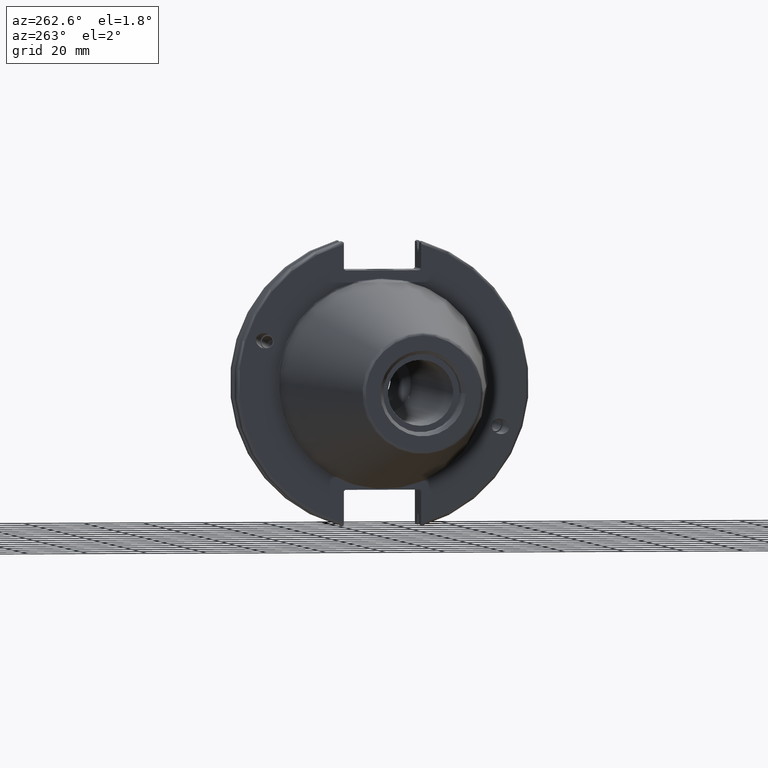
[diagram: clean part render]
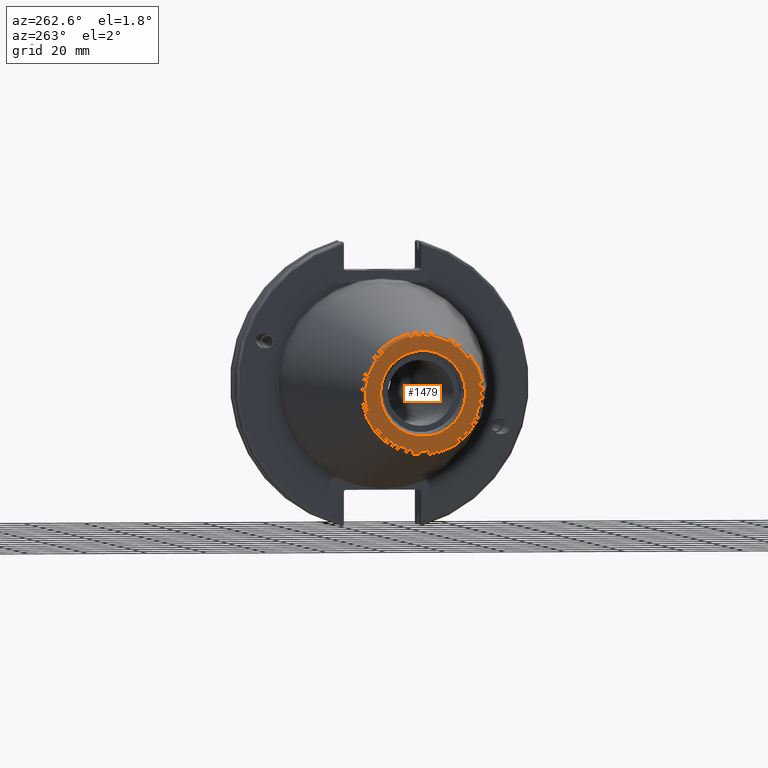
[diagram: same view with one face highlighted and labeled with its STEP entity id]
A machine part, auxiliary view. The second image highlights one B-rep face of the part: STEP entity #1479.
In plain terms, the highlighted planar face has unit normal (-1, 0, 0).
Its self-contained STEP definition (entity closure, byte-faithful):
#306=FACE_BOUND('',#502,.T.);
#329=PLANE('',#1649);
#400=FACE_OUTER_BOUND('',#501,.T.);
#501=EDGE_LOOP('',(#1282));
#502=EDGE_LOOP('',(#1283));
#594=CIRCLE('',#1648,19.2435889303637);
#595=CIRCLE('',#1650,14.2875);
#743=VERTEX_POINT('',#2945);
#744=VERTEX_POINT('',#2949);
#940=EDGE_CURVE('',#743,#743,#594,.T.);
#941=EDGE_CURVE('',#744,#744,#595,.T.);
#1282=ORIENTED_EDGE('',*,*,#940,.F.);
#1283=ORIENTED_EDGE('',*,*,#941,.T.);
#1479=ADVANCED_FACE('',(#400,#306),#329,.T.);
#1648=AXIS2_PLACEMENT_3D('',#2947,#1996,#1997);
#1649=AXIS2_PLACEMENT_3D('',#2948,#1998,#1999);
#1650=AXIS2_PLACEMENT_3D('',#2950,#2000,#2001);
#1996=DIRECTION('center_axis',(1.,0.,0.));
#1997=DIRECTION('ref_axis',(0.,-1.,1.83697019872103E-16));
#1998=DIRECTION('center_axis',(-1.,0.,0.));
#1999=DIRECTION('ref_axis',(0.,0.,1.));
#2000=DIRECTION('center_axis',(1.,0.,0.));
#2001=DIRECTION('ref_axis',(0.,0.,-1.));
#2945=CARTESIAN_POINT('',(-101.6,-2.35665995876774E-15,19.2435889303637));
#2947=CARTESIAN_POINT('Origin',(-101.6,0.,0.));
#2948=CARTESIAN_POINT('Origin',(-101.6,20.1083333333333,0.));
#2949=CARTESIAN_POINT('',(-101.6,-14.2875,-1.74971411428178E-15));
#2950=CARTESIAN_POINT('Origin',(-101.6,0.,0.));